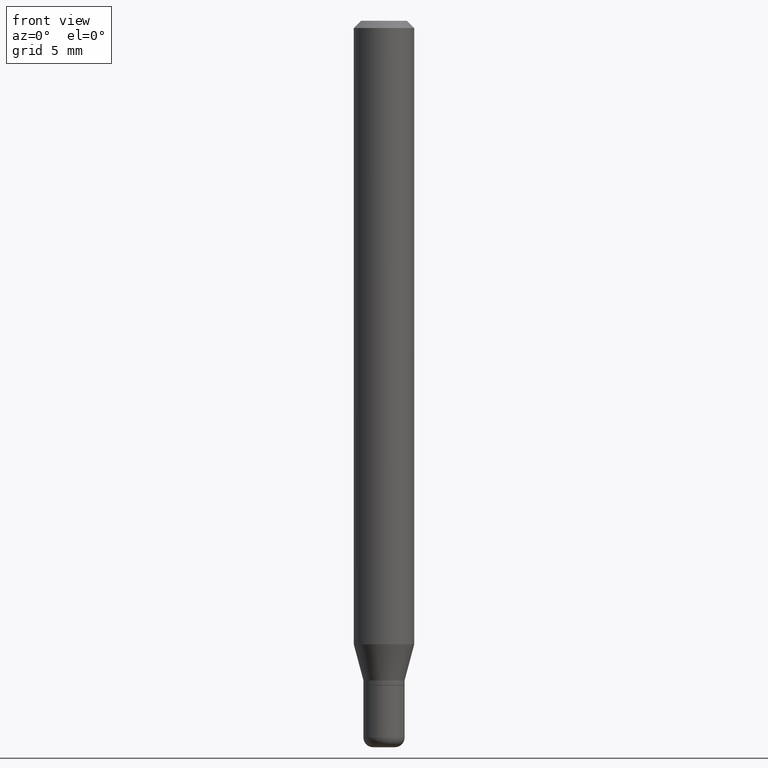
[diagram: clean part render]
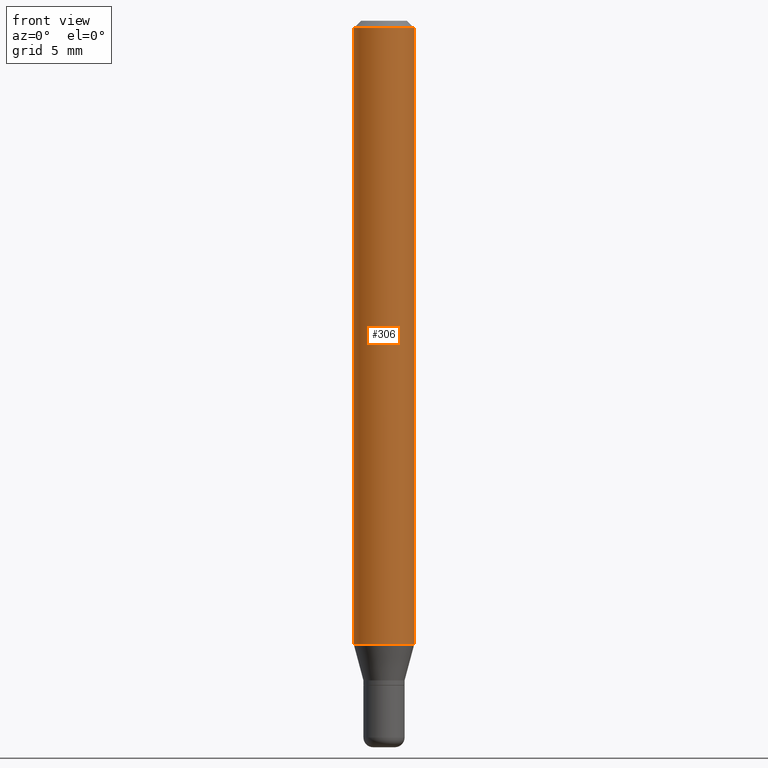
[diagram: same view with one face highlighted and labeled with its STEP entity id]
A machine part, front view. The second image highlights one B-rep face of the part: STEP entity #306.
In plain terms, the highlighted cylindrical surface (edge-blend (fillet) strip) has radius 1.5875 mm, axis along (-0, 0, 1).
Its self-contained STEP definition (entity closure, byte-faithful):
#28 = CARTESIAN_POINT ( 'NONE',  ( 3.668203209277632395E-31, -5.237222008264614861E-17, -0.01499999999999970281 ) ) ;
#43 = VERTEX_POINT ( 'NONE', #498 ) ;
#54 = DIRECTION ( 'NONE',  ( 1.000000000000000000, -6.982962677686266711E-15, 4.876176775795935793E-29 ) ) ;
#63 = EDGE_CURVE ( 'NONE', #43, #94, #139, .T. ) ;
#69 = DIRECTION ( 'NONE',  ( -2.445468806185136597E-29, 3.491481338843145583E-15, 1.000000000000000000 ) ) ;
#72 = DIRECTION ( 'NONE',  ( 1.000000000000000000, -6.982962677686262766E-15, 0.000000000000000000 ) ) ;
#94 = VERTEX_POINT ( 'NONE', #185 ) ;
#99 = EDGE_CURVE ( 'NONE', #220, #291, #346, .T. ) ;
#100 = CARTESIAN_POINT ( 'NONE',  ( 0.06250000000000000000, -4.888073874380378612E-16, -0.01499999999999970281 ) ) ;
#101 = CARTESIAN_POINT ( 'NONE',  ( -0.06250000000000000000, 4.440892098500626162E-16, -3.074334431409316114E-30 ) ) ;
#115 = ORIENTED_EDGE ( 'NONE', *, *, #369, .F. ) ;
#118 = ORIENTED_EDGE ( 'NONE', *, *, #99, .T. ) ;
#139 = LINE ( 'NONE', #101, #164 ) ;
#154 = VECTOR ( 'NONE', #433, 39.37007874015748143 ) ;
#164 = VECTOR ( 'NONE', #260, 39.37007874015748143 ) ;
#177 = DIRECTION ( 'NONE',  ( -2.445468806185136597E-29, 3.491481338843145583E-15, 1.000000000000000000 ) ) ;
#180 = EDGE_LOOP ( 'NONE', ( #483, #456, #118, #115 ) ) ;
#185 = CARTESIAN_POINT ( 'NONE',  ( -0.06250000000000000000, -1.829491834441030654E-15, -0.01499999999999970281 ) ) ;
#199 = CIRCLE ( 'NONE', #467, 0.06250000000000000000 ) ;
#220 = VERTEX_POINT ( 'NONE', #442 ) ;
#228 = DIRECTION ( 'NONE',  ( 1.000000000000000000, -6.982962677686266711E-15, 0.000000000000000000 ) ) ;
#260 = DIRECTION ( 'NONE',  ( -2.445468806185136877E-29, 3.491481338843145188E-15, 1.000000000000000000 ) ) ;
#291 = VERTEX_POINT ( 'NONE', #100 ) ;
#306 = ADVANCED_FACE ( 'NONE', ( #352 ), #435, .T. ) ;
#346 = LINE ( 'NONE', #440, #154 ) ;
#348 = AXIS2_PLACEMENT_3D ( 'NONE', #426, #69, #72 ) ;
#349 = DIRECTION ( 'NONE',  ( -2.445468806185136597E-29, 3.491481338843145583E-15, 1.000000000000000000 ) ) ;
#352 = FACE_OUTER_BOUND ( 'NONE', #180, .T. ) ;
#358 = EDGE_CURVE ( 'NONE', #43, #220, #491, .T. ) ;
#369 = EDGE_CURVE ( 'NONE', #94, #291, #199, .T. ) ;
#404 = AXIS2_PLACEMENT_3D ( 'NONE', #423, #177, #54 ) ;
#423 = CARTESIAN_POINT ( 'NONE',  ( 0.000000000000000000, 0.000000000000000000, 0.000000000000000000 ) ) ;
#426 = CARTESIAN_POINT ( 'NONE',  ( 3.148196237364002379E-29, -4.494789868499541434E-15, -1.287358983848622795 ) ) ;
#433 = DIRECTION ( 'NONE',  ( -2.445468806185136877E-29, 3.491481338843145188E-15, 1.000000000000000000 ) ) ;
#435 = CYLINDRICAL_SURFACE ( 'NONE', #404, 0.06250000000000000000 ) ;
#440 = CARTESIAN_POINT ( 'NONE',  ( 0.06250000000000000000, -4.364351673553916694E-16, 3.047610484872459871E-30 ) ) ;
#442 = CARTESIAN_POINT ( 'NONE',  ( 0.06250000000000000000, -4.931225035854932314E-15, -1.287358983848622795 ) ) ;
#456 = ORIENTED_EDGE ( 'NONE', *, *, #358, .T. ) ;
#467 = AXIS2_PLACEMENT_3D ( 'NONE', #28, #349, #228 ) ;
#483 = ORIENTED_EDGE ( 'NONE', *, *, #63, .F. ) ;
#491 = CIRCLE ( 'NONE', #348, 0.06250000000000000000 ) ;
#498 = CARTESIAN_POINT ( 'NONE',  ( -0.06250000000000000000, -4.050700658649478029E-15, -1.287358983848622795 ) ) ;